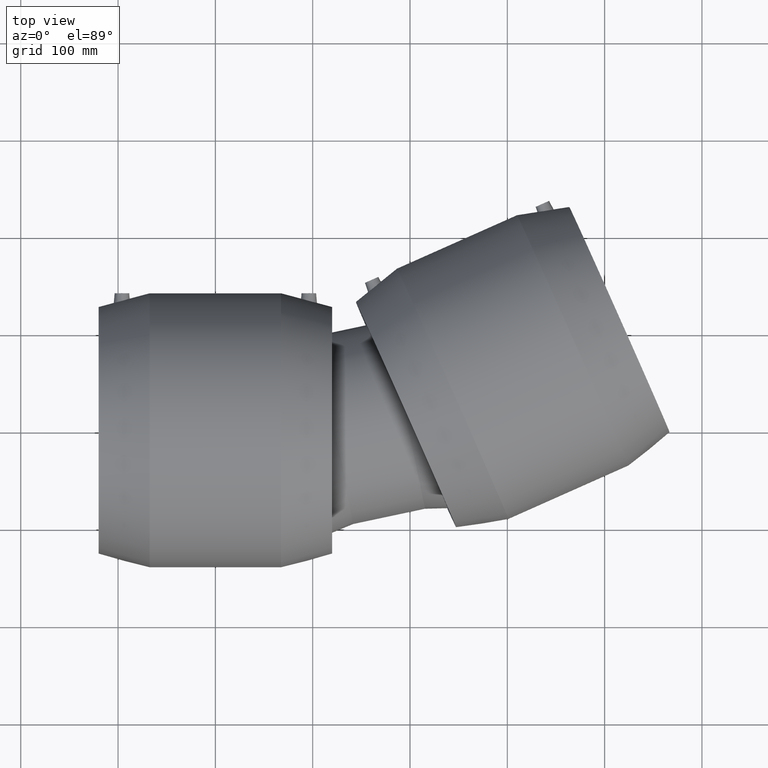
[diagram: clean part render]
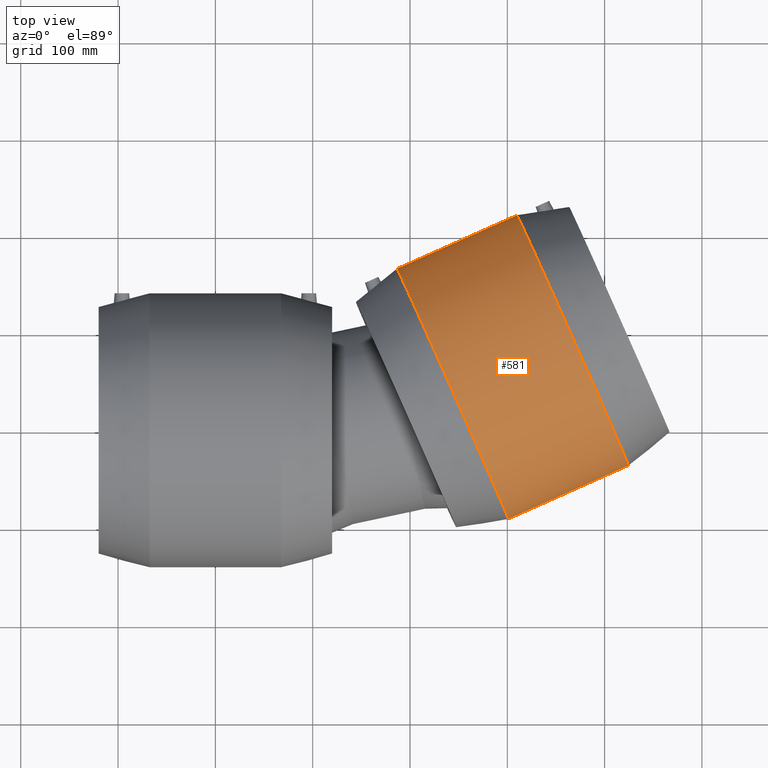
[diagram: same view with one face highlighted and labeled with its STEP entity id]
A machine part, top view. The second image highlights one B-rep face of the part: STEP entity #581.
In plain terms, the highlighted cylindrical surface (bore or boss wall) has radius 141 mm, axis along (0.9135, 0.4067, 0).
Its self-contained STEP definition (entity closure, byte-faithful):
#60=CYLINDRICAL_SURFACE('',#672,141.);
#101=FACE_BOUND('',#242,.T.);
#153=FACE_OUTER_BOUND('',#241,.T.);
#241=EDGE_LOOP('',(#516));
#242=EDGE_LOOP('',(#517));
#310=CIRCLE('',#673,141.);
#311=CIRCLE('',#674,141.);
#362=VERTEX_POINT('',#1358);
#363=VERTEX_POINT('',#1360);
#418=EDGE_CURVE('',#362,#362,#310,.T.);
#419=EDGE_CURVE('',#363,#363,#311,.T.);
#516=ORIENTED_EDGE('',*,*,#418,.T.);
#517=ORIENTED_EDGE('',*,*,#419,.F.);
#581=ADVANCED_FACE('',(#153,#101),#60,.T.);
#672=AXIS2_PLACEMENT_3D('',#1357,#851,#852);
#673=AXIS2_PLACEMENT_3D('',#1359,#853,#854);
#674=AXIS2_PLACEMENT_3D('',#1361,#855,#856);
#851=DIRECTION('center_axis',(0.913545457642601,0.406736643075801,1.19788532833232E-16));
#852=DIRECTION('ref_axis',(-0.406736643075801,0.913545457642601,-2.54618386665283E-17));
#853=DIRECTION('center_axis',(0.913545457642601,0.406736643075801,1.19788532833232E-16));
#854=DIRECTION('ref_axis',(1.19788532833232E-16,2.54618386665284E-17,-1.));
#855=DIRECTION('center_axis',(0.913545457642601,0.406736643075801,1.19788532833232E-16));
#856=DIRECTION('ref_axis',(1.19788532833232E-16,2.54618386665284E-17,-1.));
#1357=CARTESIAN_POINT('Origin',(305.648225516852,64.9675358964058,1.91336727076503E-14));
#1358=CARTESIAN_POINT('',(186.634040452289,166.322722016396,7.45782748942668E-15));
#1359=CARTESIAN_POINT('Origin',(243.983907125977,37.5128124887892,1.10479467414072E-14));
#1360=CARTESIAN_POINT('',(309.96267723404,221.232168831629,2.3629279421913E-14));
#1361=CARTESIAN_POINT('Origin',(367.312543907728,92.4222593040223,2.72193986738935E-14));